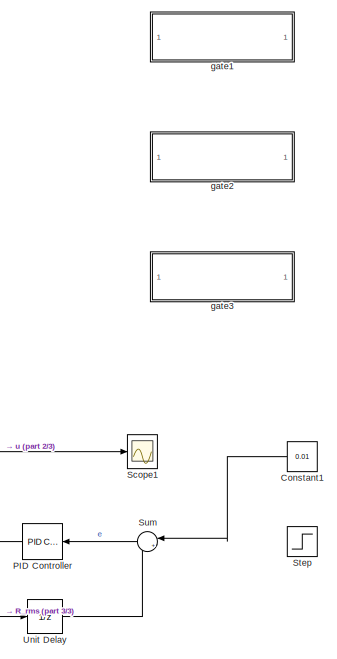
[diagram: root canvas - part 1/3, top right region]
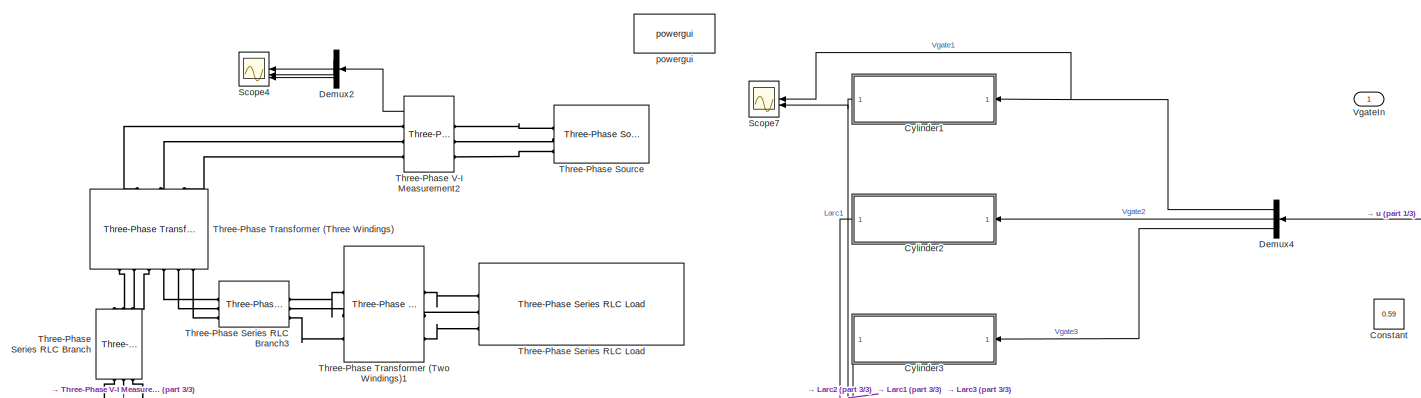
[diagram: root canvas - part 2/3, full width, top band]
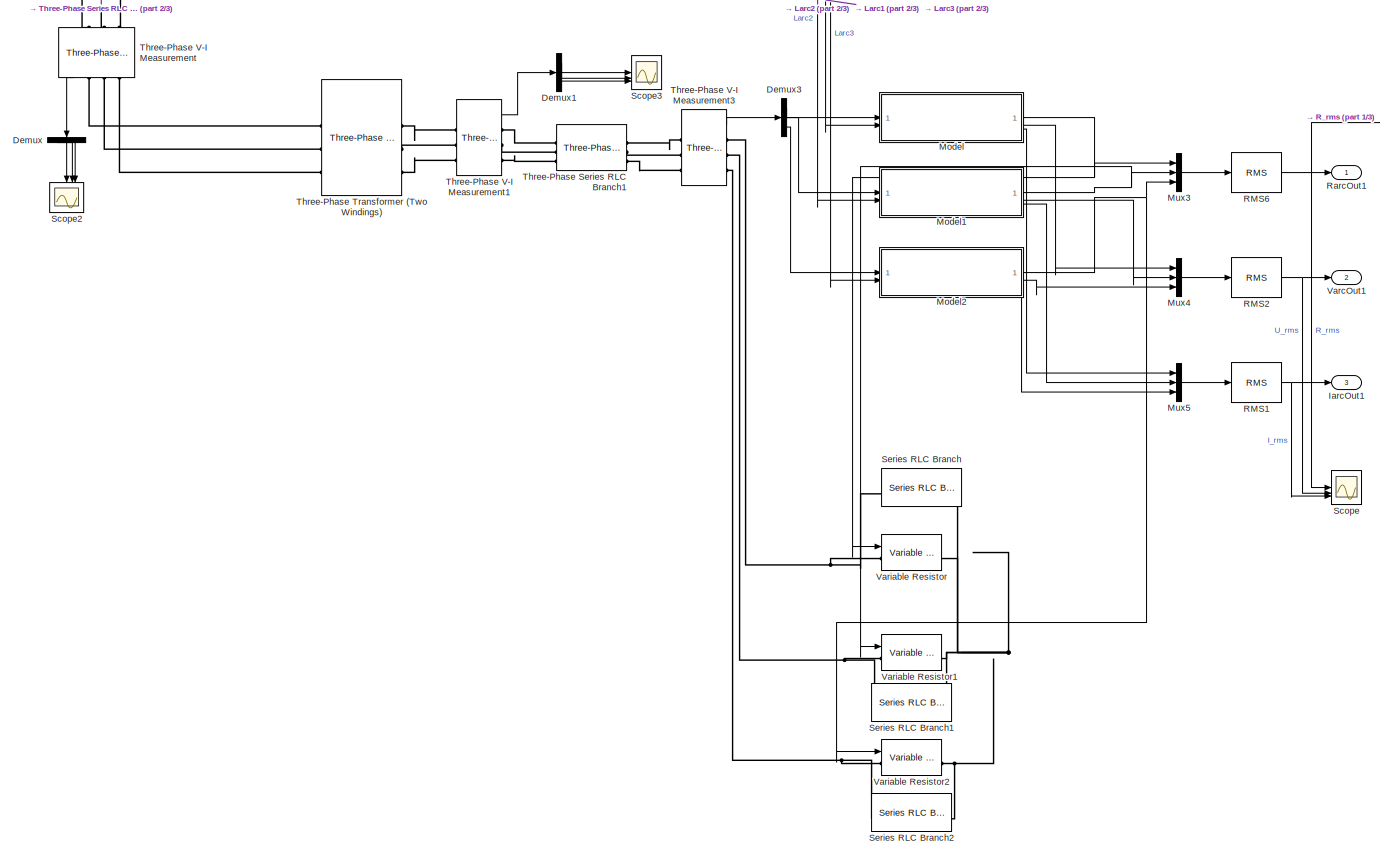
[diagram: root canvas - part 3/3, bottom center region]
MODEL slx_9963565f1e0d
KIND model
CONFIG AbsTol = auto
CONFIG EnableMultiTasking = off
CONFIG FixedStep = auto
CONFIG MaxStep = auto
CONFIG MinStep = auto
CONFIG RelTol = 1e-3
CONFIG SampleTimeConstraint = Unconstrained
CONFIG SolverName = VariableStepAuto
CONFIG StartTime = 0.0
CONFIG StopTime = 5
BLOCK [Constant] Constant
  Commented = on
  Value = 0.59
BLOCK [Constant] Constant1
  Value = 0.01
BLOCK [ModelReference] Cylinder1
  Ap = 0.0314
  Ct = 2.4e-12
  Fforce = 90000
  Gmass = 9000
  Kc = 1.68e-9
  Kq = 1.63
  L_init = 0.15
  ModelNameDialog = hydraulic.slx
  ModelReferenceVersion = 1.17
  UsingDefaultArgumentValue = 0,0,0,0,0,0,0,0,0
  Ve = 0.11304
  beta_e = 7e8
BLOCK [ModelReference] Cylinder2
  Ap = 0.0314
  Ct = 2.4e-12
  Fforce = 90000
  Gmass = 9000
  Kc = 1.68e-9
  Kq = 1.63
  L_init = 0.15
  ModelNameDialog = hydraulic.slx
  ModelReferenceVersion = 1.17
  UsingDefaultArgumentValue = 0,0,0,0,0,0,0,0,0
  Ve = 0.11304
  beta_e = 7e8
BLOCK [ModelReference] Cylinder3
  Ap = 0.0314
  Ct = 2.4e-12
  Fforce = 90000
  Gmass = 9000
  Kc = 1.68e-9
  Kq = 1.63
  L_init = 0.15
  ModelNameDialog = hydraulic.slx
  ModelReferenceVersion = 1.17
  UsingDefaultArgumentValue = 0,0,0,0,0,0,0,0,0
  Ve = 0.11304
  beta_e = 7e8
BLOCK [Demux] Demux
  NameLocation = right
  Outputs = 3
BLOCK [Demux] Demux1
  Outputs = 3
BLOCK [Demux] Demux2
  Outputs = 3
BLOCK [Demux] Demux3
  Outputs = 3
BLOCK [Demux] Demux4
  Outputs = 3
BLOCK [Outport] IarcOut1
  Port = 3
BLOCK [ModelReference] Model
  K1 = 221320
  K2 = 0.00072
  ModelNameDialog = arc.slx
  ModelReferenceVersion = 1.20
  U_PhaseRMS = 243
  UsingDefaultArgumentValue = 0,0,0,0,0,0,0
  Xd = 3e-3
  f = 50
  lambda = 2
  rd = 0.4e-3
BLOCK [ModelReference] Model1
  K1 = 221320
  K2 = 0.00072
  ModelNameDialog = arc.slx
  ModelReferenceVersion = 1.20
  U_PhaseRMS = 243
  UsingDefaultArgumentValue = 0,0,0,0,0,0,0
  Xd = 3e-3
  f = 50
  lambda = 2
  rd = 0.4e-3
BLOCK [ModelReference] Model2
  K1 = 221320
  K2 = 0.00072
  ModelNameDialog = arc.slx
  ModelReferenceVersion = 1.20
  U_PhaseRMS = 243
  UsingDefaultArgumentValue = 0,0,0,0,0,0,0
  Xd = 3e-3
  f = 50
  lambda = 2
  rd = 0.4e-3
BLOCK [Mux] Mux3
  DisplayOption = bar
  Inputs = 3
BLOCK [Mux] Mux4
  DisplayOption = bar
  Inputs = 3
BLOCK [Mux] Mux5
  DisplayOption = bar
  Inputs = 3
BLOCK [Reference] PID Controller  REF=slpidlib/PID Controller
  LibrarySourceBlock = simulink/Continuous/PID Controller
  SourceBlock = slpidlib/PID Controller
  SourceType = PID 1dof
BLOCK [Reference] RMS1  REF=spsRMSLib/RMS
  LibrarySourceBlock = sps_lib/Sensors and Measurements/RMS
  SourceBlock = spsRMSLib/RMS
  SourceType = RMS
BLOCK [Reference] RMS2  REF=spsRMSLib/RMS
  LibrarySourceBlock = sps_lib/Sensors and Measurements/RMS
  SourceBlock = spsRMSLib/RMS
  SourceType = RMS
BLOCK [Reference] RMS6  REF=spsRMSLib/RMS
  LibrarySourceBlock = sps_lib/Sensors and Measurements/RMS
  SourceBlock = spsRMSLib/RMS
  SourceType = RMS
BLOCK [Outport] RarcOut1
BLOCK [Scope] Scope
  Floating = off
  NumInputPorts = 3
  ScopeSpecificationString = Simulink.scopes.TimeScopeBlockCfg('CurrentConfiguration', extmgr.ConfigurationSet(extmgr.Configuration('Core','General UI',true),extmgr.Configuration('Core','Source UI',true),extmgr.Configuration('Sources','WiredSimulink',true,'DataLoggingVariableName','ScopeData1'),extmgr.Configuration('Visuals','Time Domain',true,'SerializedDisplays',{struct('MinYLimReal','-9.02565','MaxYLimReal','81.33089','YLa...<+3330ch>
BLOCK [Scope] Scope1
  Floating = off
  NumInputPorts = 1
  ScopeSpecificationString = Simulink.scopes.TimeScopeBlockCfg('CurrentConfiguration', extmgr.ConfigurationSet(extmgr.Configuration('Core','General UI',true),extmgr.Configuration('Core','Source UI',true),extmgr.Configuration('Sources','WiredSimulink',true,'DataLoggingVariableName','ScopeData2'),extmgr.Configuration('Visuals','Time Domain',true,'SerializedDisplays',{struct('MinYLimReal','-4629.79118','MaxYLimReal','517.53236',...<+1775ch>
BLOCK [Scope] Scope2
  Floating = off
  NameLocation = right
  NumInputPorts = 3
  ScopeSpecificationString = Simulink.scopes.TimeScopeBlockCfg('CurrentConfiguration', extmgr.ConfigurationSet(extmgr.Configuration('Core','General UI',true),extmgr.Configuration('Core','Source UI',true),extmgr.Configuration('Sources','WiredSimulink',true,'DataLoggingVariableName','ScopeData1'),extmgr.Configuration('Visuals','Time Domain',true,'SerializedDisplays',{struct('MinYLimReal','-54351.26141','MaxYLimReal','61130.6553...<+3294ch>
BLOCK [Scope] Scope3
  Floating = off
  NumInputPorts = 3
  ScopeSpecificationString = Simulink.scopes.TimeScopeBlockCfg('CurrentConfiguration', extmgr.ConfigurationSet(extmgr.Configuration('Core','General UI',true),extmgr.Configuration('Core','Source UI',true),extmgr.Configuration('Sources','WiredSimulink',true,'DataLoggingVariableName','ScopeData2'),extmgr.Configuration('Visuals','Time Domain',true,'SerializedDisplays',{struct('MinYLimReal','-666.22173','MaxYLimReal','595.66342','...<+3293ch>
BLOCK [Scope] Scope4
  Floating = off
  NumInputPorts = 3
  ScopeSpecificationString = Simulink.scopes.TimeScopeBlockCfg('CurrentConfiguration', extmgr.ConfigurationSet(extmgr.Configuration('Core','General UI',true),extmgr.Configuration('Core','Source UI',true),extmgr.Configuration('Sources','WiredSimulink',true,'DataLoggingVariableName','ScopeData3'),extmgr.Configuration('Visuals','Time Domain',true,'SerializedDisplays',{struct('MinYLimReal','-194453.93834','MaxYLimReal','194453.93...<+3305ch>
BLOCK [Scope] Scope7
  Floating = off
  NumInputPorts = 2
  ScopeSpecificationString = Simulink.scopes.TimeScopeBlockCfg('CurrentConfiguration', extmgr.ConfigurationSet(extmgr.Configuration('Core','General UI',true),extmgr.Configuration('Core','Source UI',true),extmgr.Configuration('Sources','WiredSimulink',true,'DataLoggingVariableName','ScopeData1'),extmgr.Configuration('Visuals','Time Domain',true,'SerializedDisplays',{struct('MinYLimReal','-5519.1872','MaxYLimReal','616.35414','...<+2496ch>
BLOCK [Reference] Series RLC Branch  REF=spsSeriesRLCBranchLib/Series RLC Branch
  LibrarySourceBlock = sps_lib/Passives/Series RLC Branch
  SourceBlock = spsSeriesRLCBranchLib/Series RLC Branch
  SourceType = Series RLC Branch
BLOCK [Reference] Series RLC Branch1  REF=spsSeriesRLCBranchLib/Series RLC Branch
  LibrarySourceBlock = sps_lib/Passives/Series RLC Branch
  SourceBlock = spsSeriesRLCBranchLib/Series RLC Branch
  SourceType = Series RLC Branch
BLOCK [Reference] Series RLC Branch2  REF=spsSeriesRLCBranchLib/Series RLC Branch
  LibrarySourceBlock = sps_lib/Passives/Series RLC Branch
  SourceBlock = spsSeriesRLCBranchLib/Series RLC Branch
  SourceType = Series RLC Branch
BLOCK [Step] Step
  After = 0.02
  Before = 0.008
  Commented = on
  SampleTime = 0
  Time = 4
BLOCK [Sum] Sum
  Inputs = |+-
BLOCK [Reference] Three-Phase Series RLC Branch  REF=spsThreePhaseSeriesRLCBranchLib/Three-Phase
Series RLC Branch
  AttributesFormatString = \n
  LibrarySourceBlock = sps_lib/Passives/Three-Phase\nSeries RLC Branch
  NameLocation = left
  SourceBlock = spsThreePhaseSeriesRLCBranchLib/Three-Phase\nSeries RLC Branch
  SourceType = Three-Phase Series RLC Branch
BLOCK [Reference] Three-Phase Series RLC Branch1  REF=spsThreePhaseSeriesRLCBranchLib/Three-Phase
Series RLC Branch
  AttributesFormatString = \n
  LibrarySourceBlock = sps_lib/Passives/Three-Phase\nSeries RLC Branch
  SourceBlock = spsThreePhaseSeriesRLCBranchLib/Three-Phase\nSeries RLC Branch
  SourceType = Three-Phase Series RLC Branch
BLOCK [Reference] Three-Phase Series RLC Branch3  REF=spsThreePhaseSeriesRLCBranchLib/Three-Phase
Series RLC Branch
  AttributesFormatString = \n
  LibrarySourceBlock = sps_lib/Passives/Three-Phase\nSeries RLC Branch
  SourceBlock = spsThreePhaseSeriesRLCBranchLib/Three-Phase\nSeries RLC Branch
  SourceType = Three-Phase Series RLC Branch
BLOCK [Reference] Three-Phase Series RLC Load  REF=spsThreePhaseSeriesRLCLoadLib/Three-Phase
Series RLC Load
  AttributesFormatString = \n
  LibrarySourceBlock = sps_lib/Passives/Three-Phase\nSeries RLC Load
  NameLocation = right
  SourceBlock = spsThreePhaseSeriesRLCLoadLib/Three-Phase\nSeries RLC Load
  SourceType = Three-Phase Series RLC Load
BLOCK [Reference] Three-Phase Source  REF=spsThreePhaseSourceLib/Three-Phase Source
  LibrarySourceBlock = sps_lib/Sources/Three-Phase Source
  SourceBlock = spsThreePhaseSourceLib/Three-Phase Source
  SourceType = Three-Phase Source
BLOCK [Reference] Three-Phase Transformer (Three Windings)  REF=spsThreePhaseTransformerThreeWindingsLib/Three-Phase
Transformer
(Three Windings)
  LibrarySourceBlock = sps_lib/Power Grid Elements/Three-Phase\nTransformer\n(Three Windings)
  NameLocation = left
  SourceBlock = spsThreePhaseTransformerThreeWindingsLib/Three-Phase\nTransformer\n(Three Windings)
  SourceType = Three-Phase Transformer (Three Windings)
BLOCK [Reference] Three-Phase Transformer (Two Windings)  REF=spsThreePhaseTransformerTwoWindingsLib/Three-Phase
Transformer
(Two Windings)
  LibrarySourceBlock = sps_lib/Power Grid Elements/Three-Phase\nTransformer\n(Two Windings)
  NameLocation = top
  SourceBlock = spsThreePhaseTransformerTwoWindingsLib/Three-Phase\nTransformer\n(Two Windings)
  SourceType = Three-Phase Transformer (Two Windings)
BLOCK [Reference] Three-Phase Transformer (Two Windings)1  REF=spsThreePhaseTransformerTwoWindingsLib/Three-Phase
Transformer
(Two Windings)
  LibrarySourceBlock = sps_lib/Power Grid Elements/Three-Phase\nTransformer\n(Two Windings)
  NameLocation = top
  SourceBlock = spsThreePhaseTransformerTwoWindingsLib/Three-Phase\nTransformer\n(Two Windings)
  SourceType = Three-Phase Transformer (Two Windings)
BLOCK [Reference] Three-Phase V-I Measurement  REF=spsThreePhaseVIMeasurementLib/Three-Phase
V-I Measurement
  LibrarySourceBlock = sps_lib/Sensors and Measurements/Three-Phase\nV-I Measurement
  NameLocation = right
  SourceBlock = spsThreePhaseVIMeasurementLib/Three-Phase\nV-I Measurement
  SourceType = Three-Phase VI Measurement
BLOCK [Reference] Three-Phase V-I Measurement1  REF=spsThreePhaseVIMeasurementLib/Three-Phase
V-I Measurement
  LibrarySourceBlock = sps_lib/Sensors and Measurements/Three-Phase\nV-I Measurement
  NameLocation = top
  SourceBlock = spsThreePhaseVIMeasurementLib/Three-Phase\nV-I Measurement
  SourceType = Three-Phase VI Measurement
BLOCK [Reference] Three-Phase V-I Measurement2  REF=spsThreePhaseVIMeasurementLib/Three-Phase
V-I Measurement
  LibrarySourceBlock = sps_lib/Sensors and Measurements/Three-Phase\nV-I Measurement
  SourceBlock = spsThreePhaseVIMeasurementLib/Three-Phase\nV-I Measurement
  SourceType = Three-Phase VI Measurement
BLOCK [Reference] Three-Phase V-I Measurement3  REF=spsThreePhaseVIMeasurementLib/Three-Phase
V-I Measurement
  LibrarySourceBlock = sps_lib/Sensors and Measurements/Three-Phase\nV-I Measurement
  NameLocation = top
  SourceBlock = spsThreePhaseVIMeasurementLib/Three-Phase\nV-I Measurement
  SourceType = Three-Phase VI Measurement
BLOCK [UnitDelay] Unit Delay
  HasFrameUpgradeWarning = on
  SampleTime = -1
BLOCK [Outport] VarcOut1
  Port = 2
BLOCK [Reference] Variable Resistor  REF=spsVariableResistorLib/Variable Resistor
  LibrarySourceBlock = sps_lib/Passives/Variable Resistor
  SourceBlock = spsVariableResistorLib/Variable Resistor
  SourceType = Variable Resistor
BLOCK [Reference] Variable Resistor1  REF=spsVariableResistorLib/Variable Resistor
  LibrarySourceBlock = sps_lib/Passives/Variable Resistor
  SourceBlock = spsVariableResistorLib/Variable Resistor
  SourceType = Variable Resistor
BLOCK [Reference] Variable Resistor2  REF=spsVariableResistorLib/Variable Resistor
  LibrarySourceBlock = sps_lib/Passives/Variable Resistor
  SourceBlock = spsVariableResistorLib/Variable Resistor
  SourceType = Variable Resistor
BLOCK [Inport] VgateIn
  NameLocation = top
BLOCK [ModelReference] gate1
  Commented = on
  Ksvl = 0.0276
  Ksvr = 0.04
  ModelNameDialog = gate.slx
  ModelReferenceVersion = 1.12
  UsingDefaultArgumentValue = 0,0,0,0,0,0,0
  Xmax = 0.006
  Xmin = -0.004
  dl = -0.014
  dr = 0.014
  k = 0.15
BLOCK [ModelReference] gate2
  Commented = on
  Ksvl = 0.0276
  Ksvr = 0.04
  ModelNameDialog = gate.slx
  ModelReferenceVersion = 1.12
  UsingDefaultArgumentValue = 0,0,0,0,0,0,0
  Xmax = 0.006
  Xmin = -0.004
  dl = -0.014
  dr = 0.014
  k = 0.15
BLOCK [ModelReference] gate3
  Commented = on
  Ksvl = 0.0276
  Ksvr = 0.04
  ModelNameDialog = gate.slx
  ModelReferenceVersion = 1.12
  UsingDefaultArgumentValue = 0,0,0,0,0,0,0
  Xmax = 0.006
  Xmin = -0.004
  dl = -0.014
  dr = 0.014
  k = 0.15
BLOCK [Reference] powergui  REF=sps_lib/powergui
  LibrarySourceBlock = sps_lib/powergui
  Priority = 1
  SourceBlock = sps_lib/powergui
  SourceType = PSB option menu block
LINE Constant1:1 -> Sum:1
NET Cylinder1:1 -> Model:2, Scope7:2
LINE Cylinder2:1 -> Model1:2
LINE Cylinder3:1 -> Model2:2
LINE Demux1:1 -> Scope3:1
LINE Demux1:2 -> Scope3:2
LINE Demux1:3 -> Scope3:3
LINE Demux2:1 -> Scope4:1
LINE Demux2:2 -> Scope4:2
LINE Demux2:3 -> Scope4:3
LINE Demux3:1 -> Model:1
LINE Demux3:2 -> Model1:1
LINE Demux3:3 -> Model2:1
NET Demux4:1 -> Cylinder1:1, Scope7:1
LINE Demux4:2 -> Cylinder2:1
LINE Demux4:3 -> Cylinder3:1
LINE Demux:1 -> Scope2:1
LINE Demux:2 -> Scope2:2
LINE Demux:3 -> Scope2:3
NET Model1:1 -> Mux3:2, Variable Resistor1:1
LINE Model1:2 -> Mux4:2
LINE Model1:3 -> Mux5:2
NET Model2:1 -> Mux3:3, Variable Resistor2:1
LINE Model2:2 -> Mux4:3
LINE Model2:3 -> Mux5:3
NET Model:1 -> Mux3:1, Variable Resistor:1
LINE Model:2 -> Mux4:1
LINE Model:3 -> Mux5:1
LINE Mux3:1 -> RMS6:1
LINE Mux4:1 -> RMS2:1
LINE Mux5:1 -> RMS1:1
NET PID Controller:1 -> Demux4:1, Scope1:1
NET RMS1:1 -> IarcOut1:1, Scope:3
NET RMS2:1 -> Scope:2, VarcOut1:1
NET RMS6:1 -> RarcOut1:1, Scope:1, Unit Delay:1
LINE Sum:1 -> PID Controller:1
LINE Three-Phase V-I Measurement1:1 -> Demux1:1
LINE Three-Phase V-I Measurement2:1 -> Demux2:1
LINE Three-Phase V-I Measurement3:1 -> Demux3:1
LINE Three-Phase V-I Measurement:1 -> Demux:1
LINE Unit Delay:1 -> Sum:2
PNET net1: Series RLC Branch1:LConn1 -- Three-Phase V-I Measurement3:RConn2 -- Variable Resistor1:LConn1
PNET net2: Series RLC Branch1:RConn1 -- Series RLC Branch2:RConn1 -- Series RLC Branch:RConn1 -- Variable Resistor1:RConn1 -- Variable Resistor2:RConn1 -- Variable Resistor:RConn1
PNET net3: Series RLC Branch2:LConn1 -- Three-Phase V-I Measurement3:RConn3 -- Variable Resistor2:LConn1
PNET net4: Series RLC Branch:LConn1 -- Three-Phase V-I Measurement3:RConn1 -- Variable Resistor:LConn1
PLINE Three-Phase Series RLC Branch1:LConn1 -- Three-Phase V-I Measurement1:RConn1
PLINE Three-Phase Series RLC Branch1:LConn2 -- Three-Phase V-I Measurement1:RConn2
PLINE Three-Phase Series RLC Branch1:LConn3 -- Three-Phase V-I Measurement1:RConn3
PLINE Three-Phase Series RLC Branch1:RConn1 -- Three-Phase V-I Measurement3:LConn1
PLINE Three-Phase Series RLC Branch1:RConn2 -- Three-Phase V-I Measurement3:LConn2
PLINE Three-Phase Series RLC Branch1:RConn3 -- Three-Phase V-I Measurement3:LConn3
PLINE Three-Phase Series RLC Branch3:LConn1 -- Three-Phase Transformer (Three Windings):RConn4
PLINE Three-Phase Series RLC Branch3:LConn2 -- Three-Phase Transformer (Three Windings):RConn5
PLINE Three-Phase Series RLC Branch3:LConn3 -- Three-Phase Transformer (Three Windings):RConn6
PLINE Three-Phase Series RLC Branch3:RConn1 -- Three-Phase Transformer (Two Windings)1:LConn1
PLINE Three-Phase Series RLC Branch3:RConn2 -- Three-Phase Transformer (Two Windings)1:LConn2
PLINE Three-Phase Series RLC Branch3:RConn3 -- Three-Phase Transformer (Two Windings)1:LConn3
PLINE Three-Phase Series RLC Branch:LConn1 -- Three-Phase Transformer (Three Windings):RConn1
PLINE Three-Phase Series RLC Branch:LConn2 -- Three-Phase Transformer (Three Windings):RConn2
PLINE Three-Phase Series RLC Branch:LConn3 -- Three-Phase Transformer (Three Windings):RConn3
PLINE Three-Phase Series RLC Branch:RConn1 -- Three-Phase V-I Measurement:LConn1
PLINE Three-Phase Series RLC Branch:RConn2 -- Three-Phase V-I Measurement:LConn2
PLINE Three-Phase Series RLC Branch:RConn3 -- Three-Phase V-I Measurement:LConn3
PLINE Three-Phase Series RLC Load:LConn1 -- Three-Phase Transformer (Two Windings)1:RConn1
PLINE Three-Phase Series RLC Load:LConn2 -- Three-Phase Transformer (Two Windings)1:RConn2
PLINE Three-Phase Series RLC Load:LConn3 -- Three-Phase Transformer (Two Windings)1:RConn3
PLINE Three-Phase Source:RConn1 -- Three-Phase V-I Measurement2:LConn1
PLINE Three-Phase Source:RConn2 -- Three-Phase V-I Measurement2:LConn2
PLINE Three-Phase Source:RConn3 -- Three-Phase V-I Measurement2:LConn3
PLINE Three-Phase Transformer (Three Windings):LConn1 -- Three-Phase V-I Measurement2:RConn1
PLINE Three-Phase Transformer (Three Windings):LConn2 -- Three-Phase V-I Measurement2:RConn2
PLINE Three-Phase Transformer (Three Windings):LConn3 -- Three-Phase V-I Measurement2:RConn3
PLINE Three-Phase Transformer (Two Windings):LConn1 -- Three-Phase V-I Measurement:RConn1
PLINE Three-Phase Transformer (Two Windings):LConn2 -- Three-Phase V-I Measurement:RConn2
PLINE Three-Phase Transformer (Two Windings):LConn3 -- Three-Phase V-I Measurement:RConn3
PLINE Three-Phase Transformer (Two Windings):RConn1 -- Three-Phase V-I Measurement1:LConn1
PLINE Three-Phase Transformer (Two Windings):RConn2 -- Three-Phase V-I Measurement1:LConn2
PLINE Three-Phase Transformer (Two Windings):RConn3 -- Three-Phase V-I Measurement1:LConn3
note: NET lines group one-source signal fan-out (src -> all destinations, sorted); 1:1 wires keep LINE; PNET lines group multi-terminal physical nets as a canonical sorted terminal list (undirected conserving connections); 2-terminal nets keep the pairwise PLINE form
